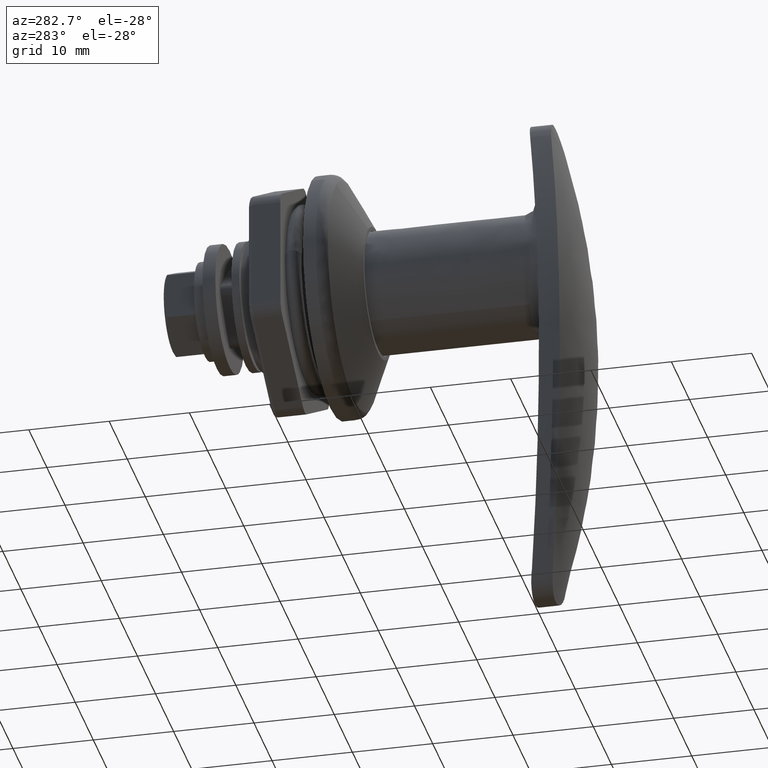
[diagram: clean part render]
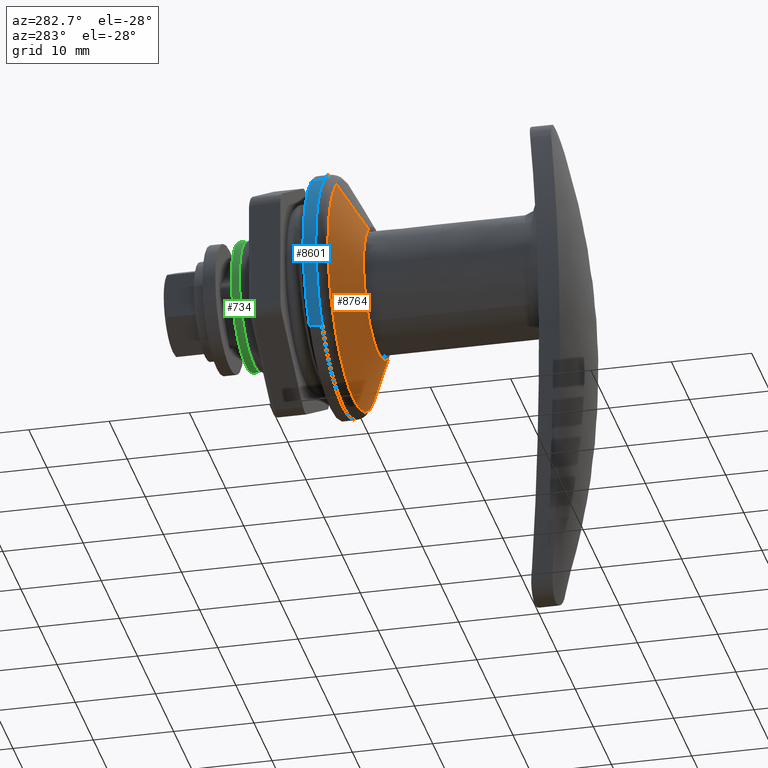
[diagram: same view with three faces highlighted in distinct colors, each labeled with its STEP entity id]
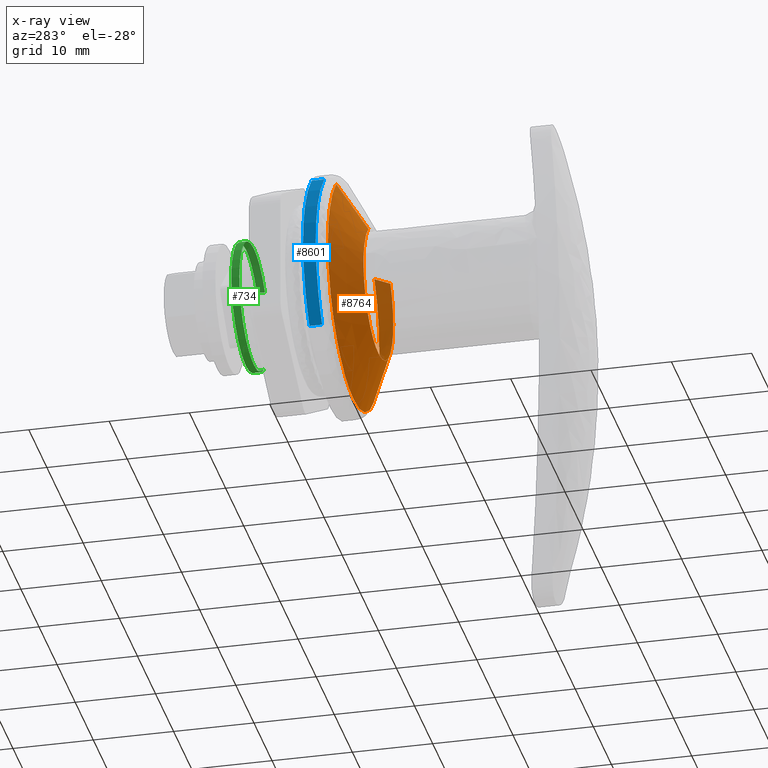
[diagram: x-ray of the same camera — body ghosted, the three highlighted faces saturated]
A machine part, auxiliary view with three faces highlighted in distinct colors.
The next image is the same camera in x-ray (body ghosted, the three faces saturated) — at least one of them is partly hidden behind the body in this view.
Their STEP definitions:

[orange] entity #8764 — the highlighted face is a freeform B-spline surface patch.
#8602=CARTESIAN_POINT('',(-0.077025000031407,-6.523622555132714,4.717041856893244));
#8603=CARTESIAN_POINT('',(-0.077025000031407,-10.724109181149464,-1.092189887779896));
#8604=CARTESIAN_POINT('',(-0.077025000031407,-5.438737627837570,-5.935340608344470));
#8605=CARTESIAN_POINT('',(-0.077025000031407,0.496602980506900,-11.374078236182042));
#8606=CARTESIAN_POINT('',(-0.077025000031407,5.935340608344470,-5.438737627837570));
#8607=CARTESIAN_POINT('',(-0.077025000031407,11.374078236182042,0.496602980506900));
#8608=CARTESIAN_POINT('',(-0.077025000031407,5.438737627837570,5.935340608344470));
#8609=CARTESIAN_POINT('',(3.159950626288462,-11.619963877646807,8.402058139203987));
#8610=CARTESIAN_POINT('',(3.159950626288463,-19.101926920473424,-1.945423257749365));
#8611=CARTESIAN_POINT('',(3.159950626288462,-9.687552313361174,-10.572108194124350));
#8612=CARTESIAN_POINT('',(3.159950626288463,0.884555880763173,-20.259660507485517));
#8613=CARTESIAN_POINT('',(3.159950626288462,10.572108194124350,-9.687552313361174));
#8614=CARTESIAN_POINT('',(3.159950626288463,20.259660507485517,0.884555880763173));
#8615=CARTESIAN_POINT('',(3.159950626288462,9.687552313361174,10.572108194124350));
#8623=(BOUNDED_SURFACE()B_SPLINE_SURFACE(2,1,((#8602,#8609),(#8603,#8610),(#8604,#8611),(#8605,#8612),(#8606,#8613),(#8607,#8614),(#8608,#8615)),.UNSPECIFIED.,.F.,.F.,.U.)B_SPLINE_SURFACE_WITH_KNOTS((3,2,2,3),(2,2),(0.0,21.857618825297099,45.615900157141773,69.374181488986437),(0.0,7.073192425054539),.UNSPECIFIED.)GEOMETRIC_REPRESENTATION_ITEM()RATIONAL_B_SPLINE_SURFACE(((0.956886118190660,0.956886118190660),(0.730538238691624,0.730538238691624),(1.0,1.0),(0.707106781186548,0.707106781186548),(1.0,1.0),(0.707106781186548,0.707106781186548),(1.0,1.0)))REPRESENTATION_ITEM('')SURFACE());
#8624=CARTESIAN_POINT('',(0.0,-8.199999999999955,0.000000880021263));
#8625=VERTEX_POINT('',#8624);
#8626=CARTESIAN_POINT('',(0.000000085012931,-6.644892134248706,4.804728364784562));
#8627=VERTEX_POINT('',#8626);
#8628=CARTESIAN_POINT('',(0.0,-8.199999999999955,0.000000880021263));
#8629=CARTESIAN_POINT('',(7.096129E-009,-8.200008069672133,0.401057140086400));
#8630=CARTESIAN_POINT('',(0.000000023654005,-8.131263149772899,1.336868714221254));
#8631=CARTESIAN_POINT('',(0.000000045330288,-7.825556522285861,2.561960360324511));
#8632=CARTESIAN_POINT('',(0.000000066708280,-7.313156763603521,3.770193348860429));
#8633=CARTESIAN_POINT('',(0.000000078496118,-6.911249866936829,4.436413731451347));
#8634=CARTESIAN_POINT('',(0.000000085012931,-6.644892134248706,4.804728364784562));
#8635=B_SPLINE_CURVE_WITH_KNOTS('',3,(#8628,#8629,#8630,#8631,#8632,#8633,#8634),.UNSPECIFIED.,.F.,.U.,(4,1,1,1,4),(6.374603E-009,1.203179538388148,2.807411805530118,3.769964005621151,5.133568940840559),.UNSPECIFIED.);
#8636=EDGE_CURVE('',#8625,#8627,#8635,.T.);
#8637=ORIENTED_EDGE('',*,*,#8636,.F.);
#8638=CARTESIAN_POINT('',(0.0,0.0,-8.200000000000001));
#8639=VERTEX_POINT('',#8638);
#8640=CARTESIAN_POINT('',(0.0,0.0,-8.200000000000001));
#8641=CARTESIAN_POINT('',(0.0,-0.536694231057888,-8.200065316617366));
#8642=CARTESIAN_POINT('',(0.0,-1.358467732713478,-8.119019599725782));
#8643=CARTESIAN_POINT('',(0.0,-2.514240254777509,-7.825724074763218));
#8644=CARTESIAN_POINT('',(0.0,-3.517984379145388,-7.438554234007456));
#8645=CARTESIAN_POINT('',(0.0,-4.558933809133081,-6.853091256053624));
#8646=CARTESIAN_POINT('',(0.0,-5.420657614441486,-6.180561352165859));
#8647=CARTESIAN_POINT('',(0.0,-6.133051787814351,-5.468136794677093));
#8648=CARTESIAN_POINT('',(0.0,-6.868105296660334,-4.549876285733351));
#8649=CARTESIAN_POINT('',(0.0,-7.492932715784685,-3.430934385739859));
#8650=CARTESIAN_POINT('',(0.0,-7.893594554951195,-2.288853888288077));
#8651=CARTESIAN_POINT('',(0.0,-8.136422390775543,-1.207529083615026));
#8652=CARTESIAN_POINT('',(0.0,-8.200042236009514,-0.469600690917085));
#8653=CARTESIAN_POINT('',(0.0,-8.199999999999955,0.000000880021263));
#8654=B_SPLINE_CURVE_WITH_KNOTS('',3,(#8640,#8641,#8642,#8643,#8644,#8645,#8646,#8647,#8648,#8649,#8650,#8651,#8652,#8653),.UNSPECIFIED.,.F.,.U.,(4,1,1,1,1,1,1,1,1,1,1,4),(0.000000038823332,1.610066463989636,2.465417325300678,3.572343449909791,4.830215751559488,6.037779426248710,6.842772409501485,7.849083439751891,9.559784089054604,10.666708998002370,11.471754849591321,12.880550581527880),.UNSPECIFIED.);
#8655=EDGE_CURVE('',#8639,#8625,#8654,.T.);
#8656=ORIENTED_EDGE('',*,*,#8655,.F.);
#8657=CARTESIAN_POINT('',(0.0,8.199999999999955,-0.000000880021152));
#8658=VERTEX_POINT('',#8657);
#8659=CARTESIAN_POINT('',(0.0,8.199999999999955,-0.000000880021152));
#8660=CARTESIAN_POINT('',(0.0,8.200125189262419,-0.603788000049541));
#8661=CARTESIAN_POINT('',(0.0,8.108807897777430,-1.425536692016632));
#8662=CARTESIAN_POINT('',(0.0,7.792860826220694,-2.609401076947095));
#8663=CARTESIAN_POINT('',(0.0,7.344126282826641,-3.752121082087894));
#8664=CARTESIAN_POINT('',(0.0,6.566336621875027,-4.997154793754570));
#8665=CARTESIAN_POINT('',(0.0,5.474598620312710,-6.165159140059982));
#8666=CARTESIAN_POINT('',(0.0,4.351107325823870,-6.998377606690431));
#8667=CARTESIAN_POINT('',(0.0,3.014186170645969,-7.671335492351965));
#8668=CARTESIAN_POINT('',(0.0,1.593291162494418,-8.097619134162120));
#8669=CARTESIAN_POINT('',(0.0,0.519916687002570,-8.200046913055429));
#8670=CARTESIAN_POINT('',(0.0,0.0,-8.200000000000001));
#8671=B_SPLINE_CURVE_WITH_KNOTS('',3,(#8659,#8660,#8661,#8662,#8663,#8664,#8665,#8666,#8667,#8668,#8669,#8670),.UNSPECIFIED.,.F.,.U.,(4,1,1,1,1,1,1,1,1,4),(0.000000038916403,1.811320846355331,2.465417135440859,3.672973079102311,5.484311919778386,6.842771882146033,8.452851499539348,9.660412899075816,11.320798538880350,12.880549589537290),.UNSPECIFIED.);
#8672=EDGE_CURVE('',#8658,#8639,#8671,.T.);
#8673=ORIENTED_EDGE('',*,*,#8672,.F.);
#8674=CARTESIAN_POINT('',(-0.000000089180599,5.539839437323038,6.045673872509887));
#8675=VERTEX_POINT('',#8674);
#8676=CARTESIAN_POINT('',(-0.000000089180599,5.539839437323038,6.045673872509887));
#8677=CARTESIAN_POINT('',(-0.000000083888465,5.931452204650137,5.686912874067945));
#8678=CARTESIAN_POINT('',(-0.000000073932877,6.537582935826117,5.012009937089586));
#8679=CARTESIAN_POINT('',(-0.000000058916387,7.185349170407361,3.994021521536163));
#8680=CARTESIAN_POINT('',(-0.000000044034696,7.664838548669305,2.985171280255065));
#8681=CARTESIAN_POINT('',(-0.000000024807992,8.078999751855234,1.681766733249753));
#8682=CARTESIAN_POINT('',(-9.140204E-009,8.200134106694266,0.619626015722588));
#8683=CARTESIAN_POINT('',(0.0,8.199999999999955,-0.000000880021152));
#8684=B_SPLINE_CURVE_WITH_KNOTS('',3,(#8676,#8677,#8678,#8679,#8680,#8681,#8682,#8683),.UNSPECIFIED.,.F.,.U.,(4,1,1,1,1,4),(0.000000012158147,1.593297207700125,2.708613469995727,3.611465295517327,4.939221686235010,6.798070035854633),.UNSPECIFIED.);
#8685=EDGE_CURVE('',#8675,#8658,#8684,.T.);
#8686=ORIENTED_EDGE('',*,*,#8685,.F.);
#8687=CARTESIAN_POINT('',(3.080999897517128,9.583922380564680,10.459015967498511));
#8688=VERTEX_POINT('',#8687);
#8689=CARTESIAN_POINT('',(-0.000000089180599,5.539839437323038,6.045673872509887));
#8690=CARTESIAN_POINT('',(3.080999897517128,9.583922380564680,10.459015967498511));
#8691=QUASI_UNIFORM_CURVE('',1,(#8689,#8690),.UNSPECIFIED.,.F.,.U.);
#8692=EDGE_CURVE('',#8675,#8688,#8691,.T.);
#8693=ORIENTED_EDGE('',*,*,#8692,.T.);
#8694=CARTESIAN_POINT('',(3.080999999999790,14.185999999999961,-0.000001011284224));
#8695=VERTEX_POINT('',#8694);
#8696=CARTESIAN_POINT('',(3.080999897517128,9.583922380564680,10.459015967498511));
#8697=CARTESIAN_POINT('',(3.080999902585363,10.148458025612999,9.941770759872158));
#8698=CARTESIAN_POINT('',(3.080999914502951,11.277134834604579,8.725502325200836));
#8699=CARTESIAN_POINT('',(3.080999933242856,12.511669316064470,6.812975082408553));
#8700=CARTESIAN_POINT('',(3.080999952786571,13.389212826249830,4.818412983294678));
#8701=CARTESIAN_POINT('',(3.080999974192075,14.013901664647300,2.633841127313513));
#8702=CARTESIAN_POINT('',(3.080999990396641,14.186147065234410,0.980065132008842));
#8703=CARTESIAN_POINT('',(3.080999999999790,14.185999999999961,-0.000001011284224));
#8704=B_SPLINE_CURVE_WITH_KNOTS('',3,(#8696,#8697,#8698,#8699,#8700,#8701,#8702,#8703),.UNSPECIFIED.,.F.,.U.,(4,1,1,1,1,4),(9.955281E-009,2.297001137124873,4.961537928921355,6.799122826380514,8.820495561504009,11.760660745358530),.UNSPECIFIED.);
#8705=EDGE_CURVE('',#8688,#8695,#8704,.T.);
#8706=ORIENTED_EDGE('',*,*,#8705,.T.);
#8707=CARTESIAN_POINT('',(3.080999999999790,0.0,-14.186000000000000));
#8708=VERTEX_POINT('',#8707);
#8709=CARTESIAN_POINT('',(3.080999999999790,14.185999999999961,-0.000001011284224));
#8710=CARTESIAN_POINT('',(3.080999999999794,14.186005657818090,-0.493249135796841));
#8711=CARTESIAN_POINT('',(3.080999999999782,14.125427412204321,-1.653838068221534));
#8712=CARTESIAN_POINT('',(3.080999999999797,13.811680187723800,-3.429729422373626));
#8713=CARTESIAN_POINT('',(3.080999999999794,13.131346883078880,-5.532578728658004));
#8714=CARTESIAN_POINT('',(3.080999999999764,12.077216685680010,-7.579656593340363));
#8715=CARTESIAN_POINT('',(3.080999999999841,10.579082638491499,-9.548629205906391));
#8716=CARTESIAN_POINT('',(3.080999999999778,8.966794293060437,-11.064899415005261));
#8717=CARTESIAN_POINT('',(3.080999999999790,7.336138081079684,-12.183580991105680));
#8718=CARTESIAN_POINT('',(3.080999999999786,5.711117219927079,-13.026715772001580));
#8719=CARTESIAN_POINT('',(3.080999999999799,4.100691432332355,-13.619710251543820));
#8720=CARTESIAN_POINT('',(3.080999999999797,2.147062034772259,-14.071010778587381));
#8721=CARTESIAN_POINT('',(3.080999999999739,0.812416801824578,-14.186072054268410));
#8722=CARTESIAN_POINT('',(3.080999999999790,0.0,-14.186000000000000));
#8723=B_SPLINE_CURVE_WITH_KNOTS('',3,(#8709,#8710,#8711,#8712,#8713,#8714,#8715,#8716,#8717,#8718,#8719,#8720,#8721,#8722),.UNSPECIFIED.,.F.,.U.,(4,1,1,1,1,1,1,1,1,1,1,4),(0.000000033318642,1.479747028456156,3.481770954249825,5.396748657571777,8.095125134146230,10.358298644483730,12.795499629137421,14.710492978860669,16.277289450987571,18.279319166046118,19.846114622171658,22.283351077991480),.UNSPECIFIED.);
#8724=EDGE_CURVE('',#8695,#8708,#8723,.T.);
#8725=ORIENTED_EDGE('',*,*,#8724,.T.);
#8726=CARTESIAN_POINT('',(3.081000000200948,-12.516183338547210,-6.677405981888480));
#8727=VERTEX_POINT('',#8726);
#8728=CARTESIAN_POINT('',(3.080999999999790,0.0,-14.186000000000000));
#8729=CARTESIAN_POINT('',(3.080999999999790,-0.878336447892029,-14.186080192647291));
#8730=CARTESIAN_POINT('',(3.081000000004183,-2.634989286869683,-14.022375605391250));
#8731=CARTESIAN_POINT('',(3.081000000021887,-4.948008495148855,-13.360702282255771));
#8732=CARTESIAN_POINT('',(3.081000000043782,-6.686561355172047,-12.544183026037880));
#8733=CARTESIAN_POINT('',(3.081000000067236,-8.118410867101725,-11.668664757655870));
#8734=CARTESIAN_POINT('',(3.081000000098714,-9.637547848962136,-10.493290517807379));
#8735=CARTESIAN_POINT('',(3.081000000144239,-11.225855502781490,-8.794552257512425));
#8736=CARTESIAN_POINT('',(3.081000000182105,-12.140379433609800,-7.381925536976822));
#8737=CARTESIAN_POINT('',(3.081000000200948,-12.516183338547210,-6.677405981888480));
#8738=B_SPLINE_CURVE_WITH_KNOTS('',3,(#8728,#8729,#8730,#8731,#8732,#8733,#8734,#8735,#8736,#8737),.UNSPECIFIED.,.F.,.U.,(4,1,1,1,1,1,1,4),(3.692495E-009,2.635007982315047,5.270026921986222,7.186394667692936,8.384115848382834,10.300488419414190,12.935510548097600,15.330967418839091),.UNSPECIFIED.);
#8739=EDGE_CURVE('',#8708,#8727,#8738,.T.);
#8740=ORIENTED_EDGE('',*,*,#8739,.T.);
#8741=CARTESIAN_POINT('',(3.081000000362809,-11.495662868341080,8.312179692253118));
#8742=VERTEX_POINT('',#8741);
#8743=CARTESIAN_POINT('',(3.081000000200948,-12.516183338547210,-6.677405981888480));
#8744=CARTESIAN_POINT('',(3.081000000138058,-12.982126231650010,-5.804357482625590));
#8745=CARTESIAN_POINT('',(3.081000000062840,-13.543052064288471,-4.421273164082691));
#8746=CARTESIAN_POINT('',(3.081000000001332,-14.010632229432710,-2.410437486017320));
#8747=CARTESIAN_POINT('',(3.080999999978749,-14.190970925767150,-0.851062622323316));
#8748=CARTESIAN_POINT('',(3.080999999981005,-14.194402285294430,1.048250644204496));
#8749=CARTESIAN_POINT('',(3.081000000020463,-13.927347001917751,2.975148055046884));
#8750=CARTESIAN_POINT('',(3.081000000096318,-13.394946468011559,4.756761432916718));
#8751=CARTESIAN_POINT('',(3.081000000200392,-12.656820436708911,6.505919953607019));
#8752=CARTESIAN_POINT('',(3.081000000291966,-12.003108582826091,7.610551852981573));
#8753=CARTESIAN_POINT('',(3.081000000362809,-11.495662868341080,8.312179692253118));
#8754=B_SPLINE_CURVE_WITH_KNOTS('',3,(#8743,#8744,#8745,#8746,#8747,#8748,#8749,#8750,#8751,#8752,#8753),.UNSPECIFIED.,.F.,.U.,(4,1,1,1,1,1,1,1,4),(3.309392E-009,2.968775739881069,4.453169207392207,6.184960874104663,7.669346723506367,10.143324153098961,11.998812981711650,13.235805544259350,15.833485149438040),.UNSPECIFIED.);
#8755=EDGE_CURVE('',#8727,#8742,#8754,.T.);
#8756=ORIENTED_EDGE('',*,*,#8755,.T.);
#8757=CARTESIAN_POINT('',(0.000000085012931,-6.644892134248706,4.804728364784562));
#8758=CARTESIAN_POINT('',(3.081000000362809,-11.495662868341080,8.312179692253118));
#8759=QUASI_UNIFORM_CURVE('',1,(#8757,#8758),.UNSPECIFIED.,.F.,.U.);
#8760=EDGE_CURVE('',#8627,#8742,#8759,.T.);
#8761=ORIENTED_EDGE('',*,*,#8760,.F.);
#8762=EDGE_LOOP('',(#8637,#8656,#8673,#8686,#8693,#8706,#8725,#8740,#8756,#8761));
#8763=FACE_OUTER_BOUND('',#8762,.T.);
#8764=ADVANCED_FACE('',(#8763),#8623,.T.);

[blue] entity #8601 — the highlighted face is a freeform B-spline surface patch.
#8379=CARTESIAN_POINT('',(4.415460561685826,11.453334773721499,-9.686130669056711));
#8380=VERTEX_POINT('',#8379);
#8395=CARTESIAN_POINT('',(5.999999999999799,11.453334773621480,-9.686130669174982));
#8396=VERTEX_POINT('',#8395);
#8397=CARTESIAN_POINT('',(5.999999999999799,11.453334773621480,-9.686130669174982));
#8398=CARTESIAN_POINT('',(4.415460561685826,11.453334773721499,-9.686130669056711));
#8399=QUASI_UNIFORM_CURVE('',1,(#8397,#8398),.UNSPECIFIED.,.F.,.U.);
#8400=EDGE_CURVE('',#8396,#8380,#8399,.T.);
#8453=CARTESIAN_POINT('',(5.999999999999799,10.325318520934140,10.880615451511730));
#8454=VERTEX_POINT('',#8453);
#8467=CARTESIAN_POINT('',(4.415460561691164,10.325318520896070,10.880615451547870));
#8468=VERTEX_POINT('',#8467);
#8469=CARTESIAN_POINT('',(5.999999999999799,10.325318520934140,10.880615451511730));
#8470=CARTESIAN_POINT('',(4.415460561691164,10.325318520896070,10.880615451547870));
#8471=QUASI_UNIFORM_CURVE('',1,(#8469,#8470),.UNSPECIFIED.,.F.,.U.);
#8472=EDGE_CURVE('',#8454,#8468,#8471,.T.);
#8535=CARTESIAN_POINT('',(6.039613485962004,10.325318635406310,10.880615565184311));
#8536=CARTESIAN_POINT('',(6.039613485962005,20.600465372626051,1.129865393766774));
#8537=CARTESIAN_POINT('',(6.039613485962006,11.453334644106969,-9.686130575730378));
#8538=CARTESIAN_POINT('',(4.374856738400371,10.325318635406310,10.880615565184311));
#8539=CARTESIAN_POINT('',(4.374856738400371,20.600465372626051,1.129865393766774));
#8540=CARTESIAN_POINT('',(4.374856738400372,11.453334644106969,-9.686130575730378));
#8548=(BOUNDED_SURFACE()B_SPLINE_SURFACE(2,1,((#8535,#8538),(#8536,#8539),(#8537,#8540)),.UNSPECIFIED.,.F.,.F.,.U.)B_SPLINE_SURFACE_WITH_KNOTS((3,3),(2,2),(0.0,23.852153380631851),(0.0,1.0),.UNSPECIFIED.)GEOMETRIC_REPRESENTATION_ITEM()RATIONAL_B_SPLINE_SURFACE(((1.0,1.0),(0.718822509939086,0.718822509939086),(0.977505800795127,0.977505800795127)))REPRESENTATION_ITEM('')SURFACE());
#8549=CARTESIAN_POINT('',(4.415460561690804,14.999999999999989,-0.000000645895637));
#8550=VERTEX_POINT('',#8549);
#8551=CARTESIAN_POINT('',(4.415460561690804,14.999999999999989,-0.000000645895637));
#8552=CARTESIAN_POINT('',(4.415460561690438,15.000032710277379,-0.685543959469977));
#8553=CARTESIAN_POINT('',(4.415460561689826,14.911482829761381,-1.974353349871352));
#8554=CARTESIAN_POINT('',(4.415460561688757,14.523522317855530,-3.913887193647391));
#8555=CARTESIAN_POINT('',(4.415460561687754,13.853916256094280,-5.892613746417046));
#8556=CARTESIAN_POINT('',(4.415460561686800,12.836075824236611,-7.874734021159929));
#8557=CARTESIAN_POINT('',(4.415460561686047,11.931455726729331,-9.120825209890311));
#8558=CARTESIAN_POINT('',(4.415460561685826,11.453334773721499,-9.686130669056711));
#8559=B_SPLINE_CURVE_WITH_KNOTS('',3,(#8551,#8552,#8553,#8554,#8555,#8556,#8557,#8558),.UNSPECIFIED.,.F.,.U.,(4,1,1,1,1,4),(7.055775E-009,2.056627311244284,3.866461760423071,5.923083050842933,8.308776926834534,10.529933154113760),.UNSPECIFIED.);
#8560=EDGE_CURVE('',#8550,#8380,#8559,.T.);
#8561=ORIENTED_EDGE('',*,*,#8560,.F.);
#8562=CARTESIAN_POINT('',(4.415460561691164,10.325318520896070,10.880615451547870));
#8563=CARTESIAN_POINT('',(4.415460561691137,11.153347883729451,10.095162667177950));
#8564=CARTESIAN_POINT('',(4.415460561691099,12.444171994478150,8.554085364085857));
#8565=CARTESIAN_POINT('',(4.415460561691005,13.780969132573610,6.093753093698960));
#8566=CARTESIAN_POINT('',(4.415460561690927,14.508342283538960,3.989801284289694));
#8567=CARTESIAN_POINT('',(4.415460561690892,14.911390101182031,1.965530615363194));
#8568=CARTESIAN_POINT('',(4.415460561690786,15.000031301206750,0.697449192674811));
#8569=CARTESIAN_POINT('',(4.415460561690804,14.999999999999989,-0.000000645895637));
#8570=B_SPLINE_CURVE_WITH_KNOTS('',3,(#8562,#8563,#8564,#8565,#8566,#8567,#8568,#8569),.UNSPECIFIED.,.F.,.U.,(4,1,1,1,1,4),(8.746342E-009,3.423851902492878,5.991748772290837,8.369413344797987,10.081343399159140,12.173692509249470),.UNSPECIFIED.);
#8571=EDGE_CURVE('',#8468,#8550,#8570,.T.);
#8572=ORIENTED_EDGE('',*,*,#8571,.F.);
#8573=ORIENTED_EDGE('',*,*,#8472,.F.);
#8574=CARTESIAN_POINT('',(5.999999999999799,14.999999999999989,-0.000000645895637));
#8575=VERTEX_POINT('',#8574);
#8576=CARTESIAN_POINT('',(5.999999999999799,10.325318520934140,10.880615451511730));
#8577=CARTESIAN_POINT('',(5.999999999999788,11.084328757912530,10.160597388794990));
#8578=CARTESIAN_POINT('',(5.999999999999805,12.202090502812201,8.851621348756884));
#8579=CARTESIAN_POINT('',(5.999999999999799,13.499734971311240,6.665989802798591));
#8580=CARTESIAN_POINT('',(5.999999999999796,14.279612653794841,4.751061342476090));
#8581=CARTESIAN_POINT('',(5.999999999999793,14.854775763210929,2.472739649778589));
#8582=CARTESIAN_POINT('',(5.999999999999799,15.000101109040139,0.951075211728711));
#8583=CARTESIAN_POINT('',(5.999999999999799,14.999999999999989,-0.000000645895637));
#8584=B_SPLINE_CURVE_WITH_KNOTS('',3,(#8576,#8577,#8578,#8579,#8580,#8581,#8582,#8583),.UNSPECIFIED.,.F.,.U.,(4,1,1,1,1,4),(8.749488E-009,3.138530593067618,5.135785614755810,7.608557004528321,9.320484191854121,12.173692509196950),.UNSPECIFIED.);
#8585=EDGE_CURVE('',#8454,#8575,#8584,.T.);
#8586=ORIENTED_EDGE('',*,*,#8585,.T.);
#8587=CARTESIAN_POINT('',(5.999999999999799,14.999999999999989,-0.000000645895637));
#8588=CARTESIAN_POINT('',(5.999999999999800,15.000163541226881,-1.069461815013474));
#8589=CARTESIAN_POINT('',(5.999999999999790,14.826234627812960,-2.687263515761579));
#8590=CARTESIAN_POINT('',(5.999999999999809,14.257388587238269,-4.752476699612959));
#8591=CARTESIAN_POINT('',(5.999999999999808,13.612634425033590,-6.387296708817670));
#8592=CARTESIAN_POINT('',(5.999999999999735,12.709498360915930,-8.054993043294532));
#8593=CARTESIAN_POINT('',(5.999999999999942,11.896039001470470,-9.162698334554509));
#8594=CARTESIAN_POINT('',(5.999999999999799,11.453334773621480,-9.686130669174982));
#8595=B_SPLINE_CURVE_WITH_KNOTS('',3,(#8587,#8588,#8589,#8590,#8591,#8592,#8593,#8594),.UNSPECIFIED.,.F.,.U.,(4,1,1,1,1,4),(7.052900E-009,3.208339276440311,4.853647865297535,6.416677699278925,8.473305850048403,10.529933154268690),.UNSPECIFIED.);
#8596=EDGE_CURVE('',#8575,#8396,#8595,.T.);
#8597=ORIENTED_EDGE('',*,*,#8596,.T.);
#8598=ORIENTED_EDGE('',*,*,#8400,.T.);
#8599=EDGE_LOOP('',(#8561,#8572,#8573,#8586,#8597,#8598));
#8600=FACE_OUTER_BOUND('',#8599,.T.);
#8601=ADVANCED_FACE('',(#8600),#8548,.T.);

[green] entity #734 — the highlighted face is a freeform B-spline surface patch.
#571=CARTESIAN_POINT('',(16.524999999999999,-6.108445143523718,5.165936307056203));
#572=CARTESIAN_POINT('',(16.525000000000002,-5.960598265852118,5.340757382698318));
#573=CARTESIAN_POINT('',(16.524999999999999,-5.802994968098299,5.506836605550030));
#574=CARTESIAN_POINT('',(16.525000000000002,-0.296158362548269,11.309831573648330));
#575=CARTESIAN_POINT('',(16.524999999999999,5.506836605550030,5.802994968098299));
#576=CARTESIAN_POINT('',(16.525000000000002,11.309831573648330,0.296158362548269));
#577=CARTESIAN_POINT('',(16.524999999999999,5.802994968098299,-5.506836605550030));
#578=CARTESIAN_POINT('',(16.525000000000002,0.296158362548269,-11.309831573648330));
#579=CARTESIAN_POINT('',(16.524999999999999,-5.506836605550030,-5.802994968098299));
#580=CARTESIAN_POINT('',(15.474375000000000,-6.108445143523718,5.165936307056203));
#581=CARTESIAN_POINT('',(15.474374999999997,-5.960598265852118,5.340757382698318));
#582=CARTESIAN_POINT('',(15.474375000000000,-5.802994968098299,5.506836605550030));
#583=CARTESIAN_POINT('',(15.474374999999997,-0.296158362548269,11.309831573648330));
#584=CARTESIAN_POINT('',(15.474375000000000,5.506836605550030,5.802994968098299));
#585=CARTESIAN_POINT('',(15.474374999999997,11.309831573648330,0.296158362548269));
#586=CARTESIAN_POINT('',(15.474375000000000,5.802994968098299,-5.506836605550030));
#587=CARTESIAN_POINT('',(15.474374999999997,0.296158362548269,-11.309831573648330));
#588=CARTESIAN_POINT('',(15.474375000000000,-5.506836605550030,-5.802994968098299));
#596=(BOUNDED_SURFACE()B_SPLINE_SURFACE(2,1,((#571,#580),(#572,#581),(#573,#582),(#574,#583),(#575,#584),(#576,#585),(#577,#586),(#578,#587),(#579,#588)),.UNSPECIFIED.,.F.,.F.,.U.)B_SPLINE_SURFACE_WITH_KNOTS((3,2,2,2,3),(2,2),(0.0,0.530193359837562,13.785027355776601,27.039861351715640,40.294695347654667),(0.0,1.0),.UNSPECIFIED.)GEOMETRIC_REPRESENTATION_ITEM()RATIONAL_B_SPLINE_SURFACE(((0.977505800795127,0.977505800795127),(0.988284271247462,0.988284271247462),(1.0,1.0),(0.707106781186548,0.707106781186548),(1.0,1.0),(0.707106781186548,0.707106781186548),(1.0,1.0),(0.707106781186548,0.707106781186548),(1.0,1.0)))REPRESENTATION_ITEM('')SURFACE());
#597=CARTESIAN_POINT('',(16.500000000010601,-6.108445325517319,5.165936433565515));
#598=VERTEX_POINT('',#597);
#599=CARTESIAN_POINT('',(16.500000000000000,0.0,8.0));
#600=VERTEX_POINT('',#599);
#601=CARTESIAN_POINT('',(16.500000000010601,-6.108445325517319,5.165936433565515));
#602=CARTESIAN_POINT('',(16.500000000009930,-5.722819523037950,5.622081854464715));
#603=CARTESIAN_POINT('',(16.500000000008519,-4.928184876959143,6.372302532980477));
#604=CARTESIAN_POINT('',(16.500000000006370,-3.660019411991029,7.155358175820933));
#605=CARTESIAN_POINT('',(16.500000000004530,-2.617845180042140,7.579915024248416));
#606=CARTESIAN_POINT('',(16.500000000002512,-1.429861432700978,7.906301786563556));
#607=CARTESIAN_POINT('',(16.500000000001030,-0.597315642761253,8.000126088337019));
#608=CARTESIAN_POINT('',(16.500000000000000,0.0,8.0));
#609=B_SPLINE_CURVE_WITH_KNOTS('',3,(#601,#602,#603,#604,#605,#606,#607,#608),.UNSPECIFIED.,.F.,.U.,(4,1,1,1,1,4),(0.000000014065699,1.791907026788965,3.258023793056191,4.452610497572898,5.158519428113871,6.950426440836561),.UNSPECIFIED.);
#610=EDGE_CURVE('',#598,#600,#609,.T.);
#611=ORIENTED_EDGE('',*,*,#610,.T.);
#612=CARTESIAN_POINT('',(16.500000000000000,7.999999999999949,-0.000000895041635));
#613=VERTEX_POINT('',#612);
#614=CARTESIAN_POINT('',(16.500000000000000,0.0,8.0));
#615=CARTESIAN_POINT('',(16.500000000000050,0.474511585173777,8.000048858128235));
#616=CARTESIAN_POINT('',(16.499999999999940,1.292614031890175,7.926980700416055));
#617=CARTESIAN_POINT('',(16.500000000000021,2.470492420660860,7.635786045756180));
#618=CARTESIAN_POINT('',(16.499999999999950,3.613053324836766,7.178898615517278));
#619=CARTESIAN_POINT('',(16.500000000000039,4.722360749578977,6.504722531351197));
#620=CARTESIAN_POINT('',(16.499999999999950,5.837797468532576,5.536597335016728));
#621=CARTESIAN_POINT('',(16.499999999999979,6.647049744007562,4.519101937310395));
#622=CARTESIAN_POINT('',(16.500000000000121,7.322540209915765,3.300600987463406));
#623=CARTESIAN_POINT('',(16.499999999999851,7.845113152254636,1.881599601034556));
#624=CARTESIAN_POINT('',(16.500000000000359,8.000192859009292,0.687236365397175));
#625=CARTESIAN_POINT('',(16.500000000000000,7.999999999999949,-0.000000895041635));
#626=B_SPLINE_CURVE_WITH_KNOTS('',3,(#614,#615,#616,#617,#618,#619,#620,#621,#622,#623,#624,#625),.UNSPECIFIED.,.F.,.U.,(4,1,1,1,1,1,1,1,1,4),(0.000000039965387,1.423525520098345,2.454370129457550,3.632473836245110,5.105100259335264,6.332258214490792,8.050334701368115,8.983002953841638,10.504726513974120,12.566390831809940),.UNSPECIFIED.);
#627=EDGE_CURVE('',#600,#613,#626,.T.);
#628=ORIENTED_EDGE('',*,*,#627,.T.);
#629=CARTESIAN_POINT('',(16.500000000000000,0.0,-8.0));
#630=VERTEX_POINT('',#629);
#631=CARTESIAN_POINT('',(16.500000000000000,7.999999999999949,-0.000000895041635));
#632=CARTESIAN_POINT('',(16.500000000000011,8.000051185730554,-0.474513398663627));
#633=CARTESIAN_POINT('',(16.499999999999989,7.932818504509003,-1.227163843298046));
#634=CARTESIAN_POINT('',(16.500000000000021,7.671238343643978,-2.343870211675132));
#635=CARTESIAN_POINT('',(16.499999999999918,7.242569428374577,-3.497313049092969));
#636=CARTESIAN_POINT('',(16.500000000000039,6.489203892596871,-4.771977308651557));
#637=CARTESIAN_POINT('',(16.500000000000050,5.539597889446130,-5.819613352291486));
#638=CARTESIAN_POINT('',(16.499999999999979,4.656437683983076,-6.526373133772514));
#639=CARTESIAN_POINT('',(16.500000000000011,3.782663325400879,-7.075966506149968));
#640=CARTESIAN_POINT('',(16.500000000000021,2.887248239594463,-7.486093106224028));
#641=CARTESIAN_POINT('',(16.500000000000011,1.587082650339128,-7.884870306050014));
#642=CARTESIAN_POINT('',(16.500000000000160,0.654518780611230,-8.000187432014830));
#643=CARTESIAN_POINT('',(16.500000000000000,0.0,-8.0));
#644=B_SPLINE_CURVE_WITH_KNOTS('',3,(#631,#632,#633,#634,#635,#636,#637,#638,#639,#640,#641,#642,#643),.UNSPECIFIED.,.F.,.U.,(4,1,1,1,1,1,1,1,1,1,4),(0.000000040054331,1.423525405827329,2.258020498233536,3.436124094437062,5.105099849155892,6.675874474276927,7.657641176798294,8.492129766945602,9.768407160507710,10.602901030610100,12.566389822887791),.UNSPECIFIED.);
#645=EDGE_CURVE('',#613,#630,#644,.T.);
#646=ORIENTED_EDGE('',*,*,#645,.T.);
#647=CARTESIAN_POINT('',(16.499999999997769,-5.506836463807460,-5.802994794553928));
#648=VERTEX_POINT('',#647);
#649=CARTESIAN_POINT('',(16.500000000000000,0.0,-8.0));
#650=CARTESIAN_POINT('',(16.499999999999801,-0.427058839416227,-8.000018567655662));
#651=CARTESIAN_POINT('',(16.499999999999549,-1.376088823682549,-7.923874006893504));
#652=CARTESIAN_POINT('',(16.499999999998849,-2.666885513352169,-7.583228939283295));
#653=CARTESIAN_POINT('',(16.499999999998401,-4.124655925632541,-6.919870161180210));
#654=CARTESIAN_POINT('',(16.499999999997950,-5.002128961686100,-6.282218251197312));
#655=CARTESIAN_POINT('',(16.499999999997769,-5.506836463807460,-5.802994794553928));
#656=B_SPLINE_CURVE_WITH_KNOTS('',3,(#649,#650,#651,#652,#653,#654,#655),.UNSPECIFIED.,.F.,.U.,(4,1,1,1,4),(9.205213E-009,1.281181816674674,2.847075534124652,3.985897370912483,6.073754632100325),.UNSPECIFIED.);
#657=EDGE_CURVE('',#630,#648,#656,.T.);
#658=ORIENTED_EDGE('',*,*,#657,.T.);
#659=CARTESIAN_POINT('',(15.500000000000000,-5.506836463671027,-5.802994794683398));
#660=VERTEX_POINT('',#659);
#661=CARTESIAN_POINT('',(16.499999999997769,-5.506836463807460,-5.802994794553928));
#662=CARTESIAN_POINT('',(15.500000000000000,-5.506836463671027,-5.802994794683398));
#663=QUASI_UNIFORM_CURVE('',1,(#661,#662),.UNSPECIFIED.,.F.,.U.);
#664=EDGE_CURVE('',#648,#660,#663,.T.);
#665=ORIENTED_EDGE('',*,*,#664,.T.);
#666=CARTESIAN_POINT('',(15.500000000000000,0.0,-8.0));
#667=VERTEX_POINT('',#666);
#668=CARTESIAN_POINT('',(15.500000000000000,0.0,-8.0));
#669=CARTESIAN_POINT('',(15.500000000000030,-0.347973383996023,-8.000005845542495));
#670=CARTESIAN_POINT('',(15.499999999999950,-1.138830080130607,-7.948345895083979));
#671=CARTESIAN_POINT('',(15.500000000000140,-2.286656230051535,-7.699464333299360));
#672=CARTESIAN_POINT('',(15.499999999999821,-3.337231189785911,-7.294675434447380));
#673=CARTESIAN_POINT('',(15.500000000000369,-4.424449945161559,-6.707399360630323));
#674=CARTESIAN_POINT('',(15.499999999999790,-5.105326461518244,-6.184136641638916));
#675=CARTESIAN_POINT('',(15.500000000000000,-5.506836463671027,-5.802994794683398));
#676=B_SPLINE_CURVE_WITH_KNOTS('',3,(#668,#669,#670,#671,#672,#673,#674,#675),.UNSPECIFIED.,.F.,.U.,(4,1,1,1,1,4),(9.205418E-009,1.043923315189450,2.372565667280279,3.511384514319764,4.412962118474789,6.073754631912242),.UNSPECIFIED.);
#677=EDGE_CURVE('',#667,#660,#676,.T.);
#678=ORIENTED_EDGE('',*,*,#677,.F.);
#679=CARTESIAN_POINT('',(15.500000000000000,7.999999999999949,-0.000000895041635));
#680=VERTEX_POINT('',#679);
#681=CARTESIAN_POINT('',(15.500000000000000,7.999999999999949,-0.000000895041635));
#682=CARTESIAN_POINT('',(15.500000000000000,8.000038289351187,-0.474510322863268));
#683=CARTESIAN_POINT('',(15.500000000000011,7.913871757989516,-1.439885630049145));
#684=CARTESIAN_POINT('',(15.499999999999989,7.567660506721181,-2.690978439027507));
#685=CARTESIAN_POINT('',(15.499999999999989,7.001916943935573,-3.946463045107238));
#686=CARTESIAN_POINT('',(15.499999999999940,6.261599257587459,-5.054452339299184));
#687=CARTESIAN_POINT('',(15.500000000000011,5.237849497191438,-6.097168298363736));
#688=CARTESIAN_POINT('',(15.500000000000020,4.212967686721520,-6.837929215696439));
#689=CARTESIAN_POINT('',(15.499999999999920,3.132318830413917,-7.390195309355131));
#690=CARTESIAN_POINT('',(15.500000000000041,1.767055274171633,-7.859973544135443));
#691=CARTESIAN_POINT('',(15.500000000000050,0.687241748592770,-8.000185047356164));
#692=CARTESIAN_POINT('',(15.500000000000000,0.0,-8.0));
#693=B_SPLINE_CURVE_WITH_KNOTS('',3,(#681,#682,#683,#684,#685,#686,#687,#688,#689,#690,#691,#692),.UNSPECIFIED.,.F.,.U.,(4,1,1,1,1,1,1,1,1,4),(0.000000040054331,1.423525405827329,2.896160309133480,3.877915721398992,5.546895525812412,6.872223405014024,8.246683728020912,9.326617244425265,10.504725670470830,12.566389822887791),.UNSPECIFIED.);
#694=EDGE_CURVE('',#680,#667,#693,.T.);
#695=ORIENTED_EDGE('',*,*,#694,.F.);
#696=CARTESIAN_POINT('',(15.500000000000000,0.0,8.0));
#697=VERTEX_POINT('',#696);
#698=CARTESIAN_POINT('',(15.500000000000000,0.0,8.0));
#699=CARTESIAN_POINT('',(15.500000000000030,0.638151620508390,8.000170040587657));
#700=CARTESIAN_POINT('',(15.499999999999920,1.668900167198821,7.875954523753897));
#701=CARTESIAN_POINT('',(15.500000000000091,3.026983092530655,7.436516617565186));
#702=CARTESIAN_POINT('',(15.499999999999901,3.982480009523937,6.962874429060065));
#703=CARTESIAN_POINT('',(15.500000000000060,4.883448549045968,6.364837105393869));
#704=CARTESIAN_POINT('',(15.500000000000000,5.837809901570338,5.536618611334884));
#705=CARTESIAN_POINT('',(15.499999999999940,6.688034808751543,4.467578513540500));
#706=CARTESIAN_POINT('',(15.500000000000121,7.325671421163586,3.283228419234850));
#707=CARTESIAN_POINT('',(15.500000000000210,7.685478907249324,2.296761049822355));
#708=CARTESIAN_POINT('',(15.499999999999250,7.936571451177635,1.194446029896572));
#709=CARTESIAN_POINT('',(15.500000000001309,8.000035285304502,0.458149565010718));
#710=CARTESIAN_POINT('',(15.500000000000000,7.999999999999949,-0.000000895041635));
#711=B_SPLINE_CURVE_WITH_KNOTS('',3,(#698,#699,#700,#701,#702,#703,#704,#705,#706,#707,#708,#709,#710),.UNSPECIFIED.,.F.,.U.,(4,1,1,1,1,1,1,1,1,1,4),(0.000000039965387,1.914400754611886,3.092510594782468,4.270614799482905,5.105100259335264,6.332258214490792,8.050334701368115,9.179353868605070,10.357455823380960,11.191944480417851,12.566390831809940),.UNSPECIFIED.);
#712=EDGE_CURVE('',#697,#680,#711,.T.);
#713=ORIENTED_EDGE('',*,*,#712,.F.);
#714=CARTESIAN_POINT('',(15.500000000000000,-6.108445325352348,5.165936433760583));
#715=VERTEX_POINT('',#714);
#716=CARTESIAN_POINT('',(15.500000000000000,-6.108445325352348,5.165936433760583));
#717=CARTESIAN_POINT('',(15.500000000000030,-5.757864884899530,5.580603593057668));
#718=CARTESIAN_POINT('',(15.499999999999890,-5.063486409214634,6.249691955762327));
#719=CARTESIAN_POINT('',(15.500000000000110,-3.990314943894704,6.963741060920563));
#720=CARTESIAN_POINT('',(15.500000000000171,-2.813525676309423,7.529336822173778));
#721=CARTESIAN_POINT('',(15.499999999999501,-1.502311278809215,7.908759771784571));
#722=CARTESIAN_POINT('',(15.500000000000330,-0.470599096849162,8.000030947220772));
#723=CARTESIAN_POINT('',(15.500000000000000,0.0,8.0));
#724=B_SPLINE_CURVE_WITH_KNOTS('',3,(#716,#717,#718,#719,#720,#721,#722,#723),.UNSPECIFIED.,.F.,.U.,(4,1,1,1,1,4),(0.000000014065026,1.629005421974386,2.877920240797939,3.855311711404464,5.538621524731972,6.950426440581082),.UNSPECIFIED.);
#725=EDGE_CURVE('',#715,#697,#724,.T.);
#726=ORIENTED_EDGE('',*,*,#725,.F.);
#727=CARTESIAN_POINT('',(16.500000000010601,-6.108445325517319,5.165936433565515));
#728=CARTESIAN_POINT('',(15.500000000000000,-6.108445325352348,5.165936433760583));
#729=QUASI_UNIFORM_CURVE('',1,(#727,#728),.UNSPECIFIED.,.F.,.U.);
#730=EDGE_CURVE('',#598,#715,#729,.T.);
#731=ORIENTED_EDGE('',*,*,#730,.F.);
#732=EDGE_LOOP('',(#611,#628,#646,#658,#665,#678,#695,#713,#726,#731));
#733=FACE_OUTER_BOUND('',#732,.T.);
#734=ADVANCED_FACE('',(#733),#596,.T.);